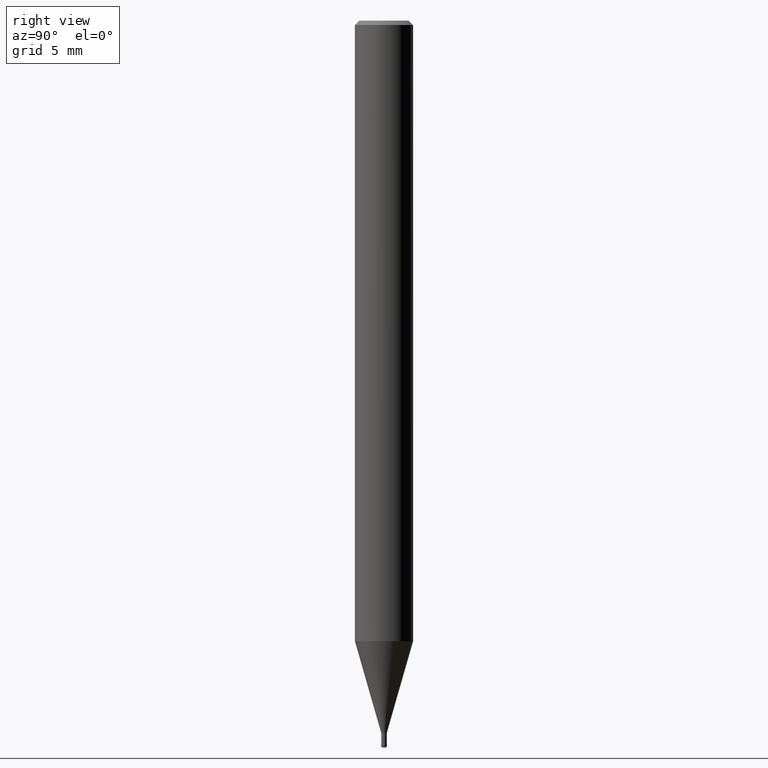
[diagram: clean part render]
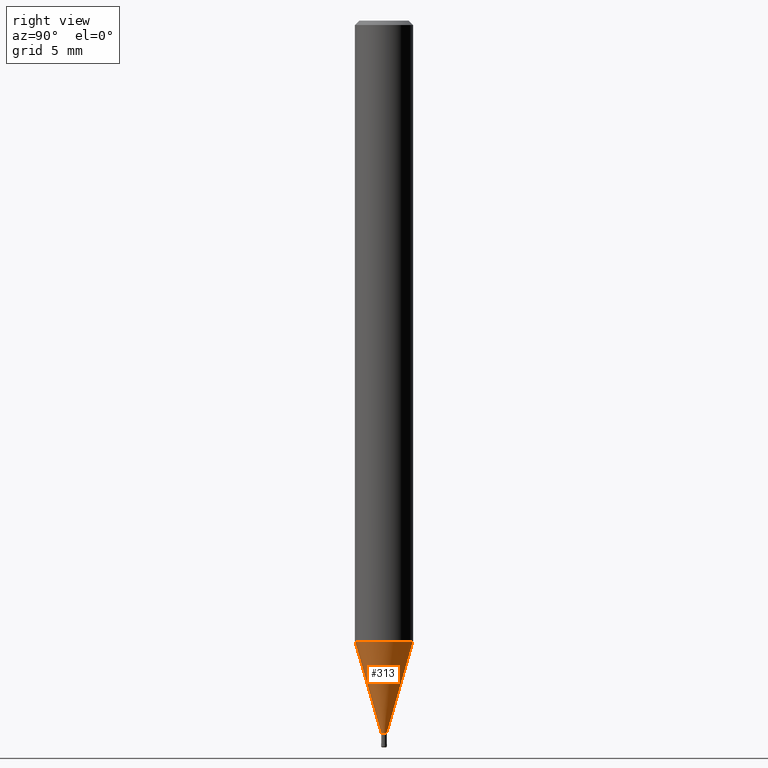
[diagram: same view with one face highlighted and labeled with its STEP entity id]
A machine part, right view. The second image highlights one B-rep face of the part: STEP entity #313.
In plain terms, the highlighted conical surface has half-angle 15.999 deg.
Its self-contained STEP definition (entity closure, byte-faithful):
#161=VERTEX_POINT('',#399);
#165=EDGE_CURVE('',#225,#161,#403,.T.);
#179=EDGE_CURVE('',#205,#225,#419,.T.);
#205=VERTEX_POINT('',#448);
#225=VERTEX_POINT('',#470);
#269=EDGE_CURVE('',#349,#205,#523,.T.);
#287=EDGE_CURVE('',#349,#161,#545,.T.);
#313=ADVANCED_FACE('',(#573),#574,.T.);
#349=VERTEX_POINT('',#614);
#399=CARTESIAN_POINT('',(2.44915147732706E-016,-1.99995,-42.686));
#403=LINE('',#664,#665);
#419=CIRCLE('',#688,0.19245);
#448=CARTESIAN_POINT('',(0.0,0.19245,-48.99));
#470=CARTESIAN_POINT('',(2.35675492793117E-017,-0.19245,-48.99));
#523=LINE('',#818,#819);
#545=CIRCLE('',#845,1.99995);
#573=FACE_OUTER_BOUND('',#883,.T.);
#574=CONICAL_SURFACE('',#884,1.0962,0.279231732547063);
#614=CARTESIAN_POINT('',(0.0,1.99995,-42.686));
#664=CARTESIAN_POINT('',(1.34241348506009E-016,-1.0962,-45.838));
#665=VECTOR('',#973,1.0);
#688=AXIS2_PLACEMENT_3D('',#993,#994,#995);
#818=CARTESIAN_POINT('',(-1.34241348506009E-016,1.0962,-45.838));
#819=VECTOR('',#1139,1.0);
#845=AXIS2_PLACEMENT_3D('',#1168,#1169,#1170);
#883=EDGE_LOOP('',(#1203,#1204,#1205,#1206));
#884=AXIS2_PLACEMENT_3D('',#1207,#1208,#1209);
#973=DIRECTION('',(3.375225981805E-017,-0.275617219465657,0.961267469715906));
#993=CARTESIAN_POINT('',(0.0,0.0,-48.99));
#994=DIRECTION('',(0.0,0.0,-1.0));
#995=DIRECTION('',(0.0,1.0,0.0));
#1139=DIRECTION('',(3.375225981805E-017,-0.275617219465657,-0.961267469715906));
#1168=CARTESIAN_POINT('',(0.0,0.0,-42.686));
#1169=DIRECTION('',(0.0,0.0,-1.0));
#1170=DIRECTION('',(0.0,1.0,0.0));
#1203=ORIENTED_EDGE('',*,*,#269,.F.);
#1204=ORIENTED_EDGE('',*,*,#287,.T.);
#1205=ORIENTED_EDGE('',*,*,#165,.F.);
#1206=ORIENTED_EDGE('',*,*,#179,.F.);
#1207=CARTESIAN_POINT('',(0.0,0.0,-45.838));
#1208=DIRECTION('',(-0.0,-0.0,1.0));
#1209=DIRECTION('',(0.0,1.0,0.0));